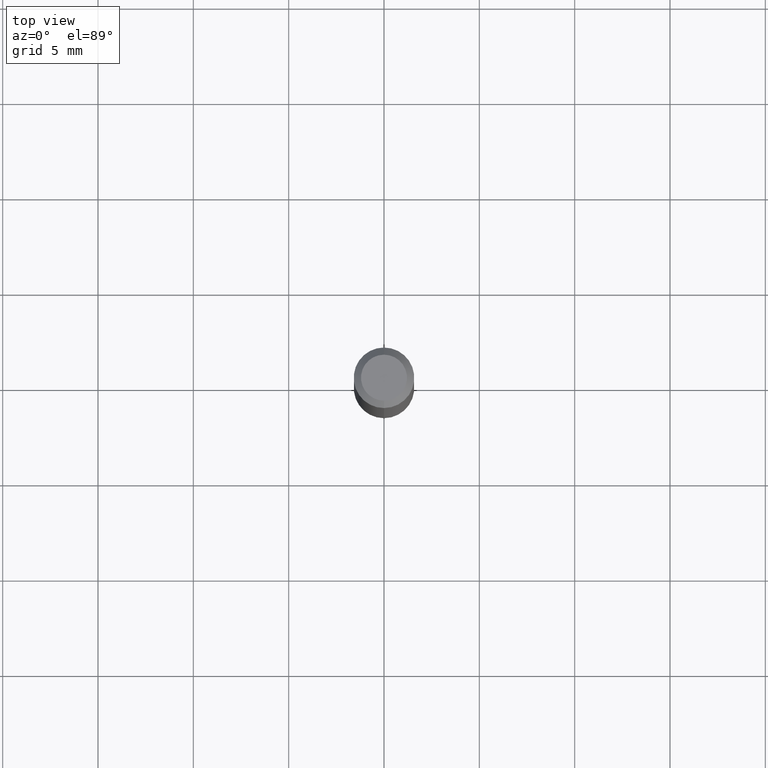
[diagram: clean part render]
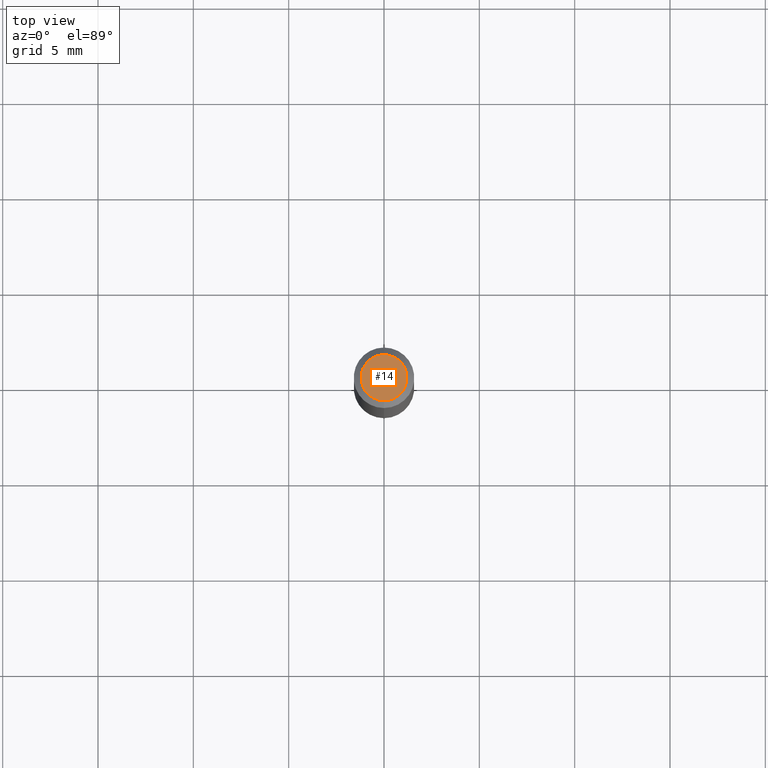
[diagram: same view with one face highlighted and labeled with its STEP entity id]
A machine part, top view. The second image highlights one B-rep face of the part: STEP entity #14.
In plain terms, the highlighted planar face has unit normal (0, -0, -1).
Its self-contained STEP definition (entity closure, byte-faithful):
#14 = ADVANCED_FACE ( 'NONE', ( #85 ), #389, .F. ) ;
#15 = CARTESIAN_POINT ( 'NONE',  ( 3.840629472727447874E-16, 0.04749999999999999362, -1.747056831868805383E-16 ) ) ;
#26 = CARTESIAN_POINT ( 'NONE',  ( 2.166572731139033405E-46, -3.093319248265844011E-32, -8.859578879227704673E-18 ) ) ;
#62 = DIRECTION ( 'NONE',  ( -6.982962677686266711E-15, -1.000000000000000000, 3.491496932792691255E-15 ) ) ;
#71 = ORIENTED_EDGE ( 'NONE', *, *, #80, .T. ) ;
#80 = EDGE_CURVE ( 'NONE', #141, #506, #420, .T. ) ;
#85 = FACE_OUTER_BOUND ( 'NONE', #314, .T. ) ;
#120 = CARTESIAN_POINT ( 'NONE',  ( 3.316907271900976096E-16, 0.04749999999999999362, -1.702758937472666490E-16 ) ) ;
#141 = VERTEX_POINT ( 'NONE', #15 ) ;
#204 = CARTESIAN_POINT ( 'NONE',  ( 2.166572731139033405E-46, -3.093319248265844011E-32, -8.859578879227704673E-18 ) ) ;
#213 = AXIS2_PLACEMENT_3D ( 'NONE', #26, #261, #62 ) ;
#219 = AXIS2_PLACEMENT_3D ( 'NONE', #120, #436, #401 ) ;
#252 = AXIS2_PLACEMENT_3D ( 'NONE', #204, #447, #411 ) ;
#261 = DIRECTION ( 'NONE',  ( -2.445457916988369542E-29, 3.491496932792690860E-15, 1.000000000000000000 ) ) ;
#280 = CARTESIAN_POINT ( 'NONE',  ( -3.773273898774340269E-16, -0.04749999999999999362, 1.569865254284251043E-16 ) ) ;
#296 = CIRCLE ( 'NONE', #213, 0.04749999999999999362 ) ;
#314 = EDGE_LOOP ( 'NONE', ( #71, #475 ) ) ;
#339 = EDGE_CURVE ( 'NONE', #506, #141, #296, .T. ) ;
#389 = PLANE ( 'NONE',  #219 ) ;
#401 = DIRECTION ( 'NONE',  ( 6.982962677686265922E-15, 1.000000000000000000, -3.491496932792690466E-15 ) ) ;
#411 = DIRECTION ( 'NONE',  ( -6.982962677686266711E-15, -1.000000000000000000, 3.491496932792691255E-15 ) ) ;
#420 = CIRCLE ( 'NONE', #252, 0.04749999999999999362 ) ;
#436 = DIRECTION ( 'NONE',  ( 2.445457916988369262E-29, -3.491496932792690466E-15, -1.000000000000000000 ) ) ;
#447 = DIRECTION ( 'NONE',  ( -2.445457916988369542E-29, 3.491496932792690860E-15, 1.000000000000000000 ) ) ;
#475 = ORIENTED_EDGE ( 'NONE', *, *, #339, .T. ) ;
#506 = VERTEX_POINT ( 'NONE', #280 ) ;